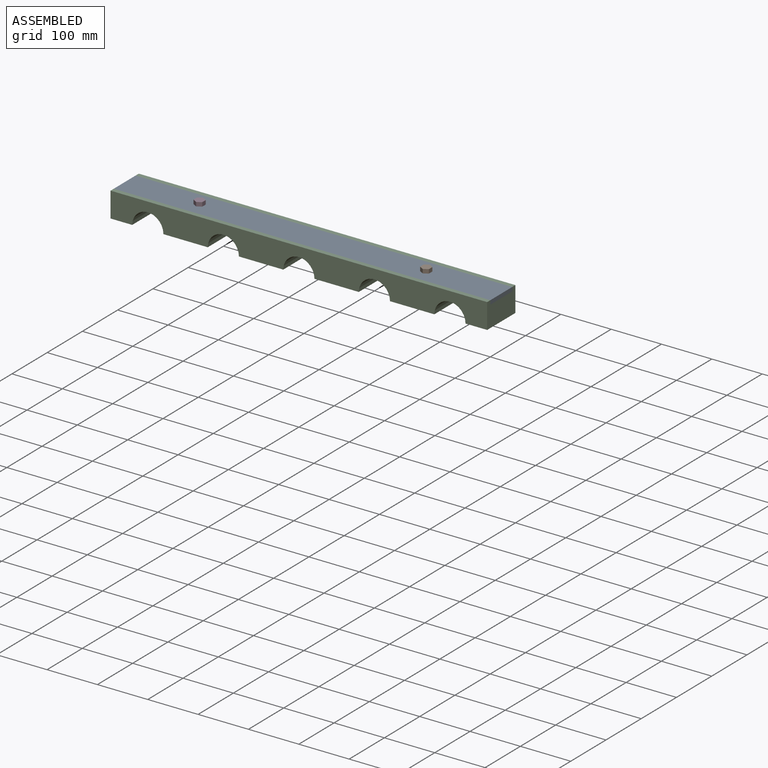
[diagram: assembled view]
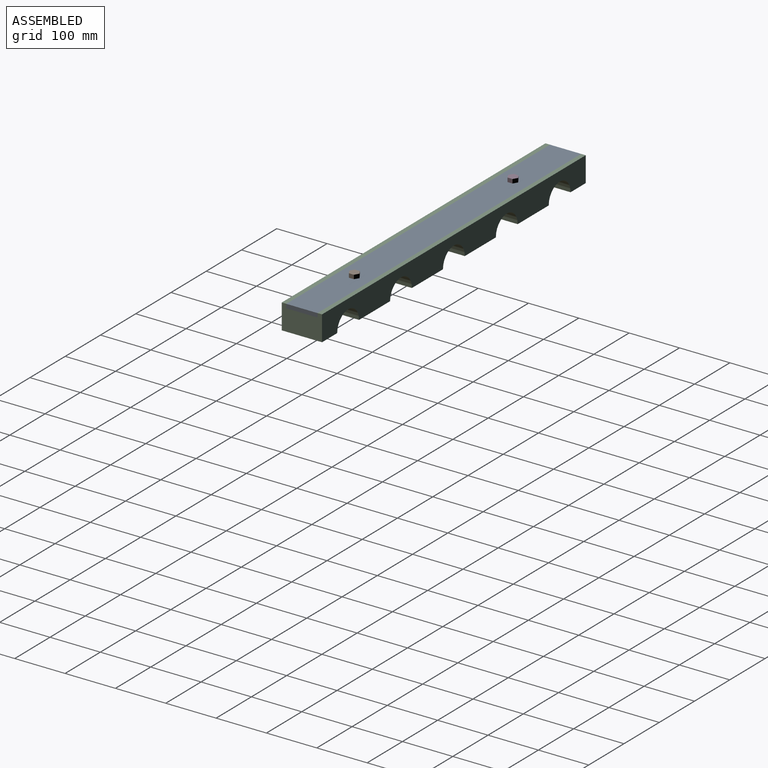
[diagram: assembled view, second angle]
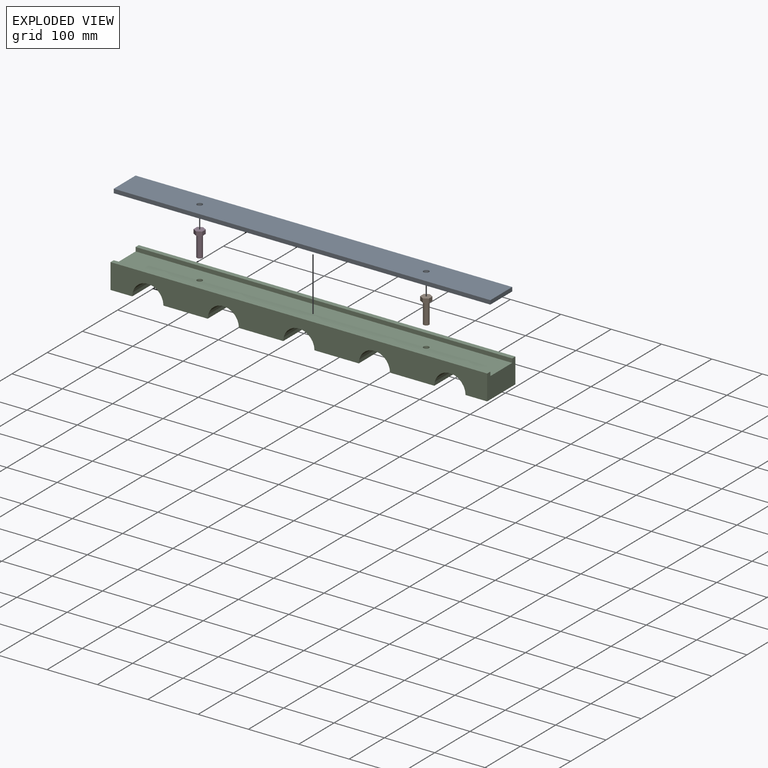
[diagram: exploded view]
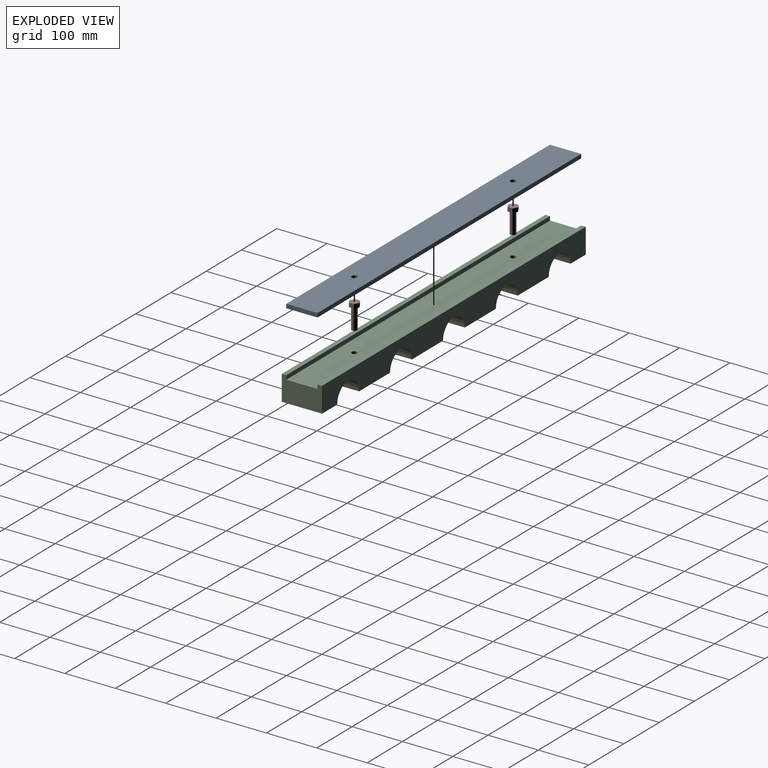
[diagram: exploded view, second angle]
ASSEMBLY  parts=4 mates=3
PART A: 8 faces, bbox 748x62x8 mm
  f0: plane 62x8mm, normal (-1,0,0), area 496mm2, adj f1,f5,f6,f7
  f1: plane 748x8mm, normal (0,-1,0), area 5984mm2, adj f0,f2,f6,f7
  f2: plane 62x8mm, normal (1,0,0), area 496mm2, adj f1,f5,f6,f7
  f3: cylinder r=5.5mm len=11mm, axis (0,0,1), area 276.5mm2, adj f6,f7
  f4: cylinder r=5.5mm len=11mm, axis (0,0,1), area 276.5mm2, adj f6,f7
  f5: plane 748x8mm, normal (0,1,0), area 5984mm2, adj f0,f2,f6,f7
  f6: plane 748x62mm, normal (0,0,-1), area 46185.9mm2, adj f0,f1,f2,f3,f4,f5
  f7: plane 748x62mm, normal (0,0,1), area 46185.9mm2, adj f0,f1,f2,f3,f4,f5
PART B: 10 faces, bbox 17.3x50x20 mm
  f0: plane 8.66x8mm, normal (-0.5,0,0.87), area 80mm2, adj f1,f5,f6,f7
  f1: plane 10x8mm, normal (-1,0,0), area 80mm2, adj f0,f2,f6,f7
  f2: plane 8.66x8mm, normal (-0.5,0,-0.87), area 80mm2, adj f1,f3,f6,f7
  f3: plane 8.66x8mm, normal (0.5,0,-0.87), area 80mm2, adj f2,f4,f6,f7
  f4: plane 10x8mm, normal (1,0,0), area 80mm2, adj f3,f5,f6,f7
  f5: plane 8.66x8mm, normal (0.5,0,0.87), area 80mm2, adj f0,f4,f6,f7
  f6: plane 20x17.32mm, normal (0,1,0), area 164.8mm2, adj f0,f1,f2,f3,f4,f5,f8
  f7: plane 20x17.32mm, normal (0,-1,0), area 259.8mm2, adj f0,f1,f2,f3,f4,f5
  f8: cylinder r=5.5mm len=42mm, axis (0,-1,0), area 1451.4mm2, adj f6,f9
  f9: plane 11x11mm, normal (0,1,0), area 95mm2, adj f8
PART C: 22 faces, bbox 748x80x50 mm
  f0: plane 748x62mm, normal (0,0,1), area 46185.9mm2, adj f1,f13,f16,f19,f20,f21
  f1: plane 80x50mm, normal (-1,0,0), area 3504mm2, adj f0,f2,f14,f15,f16,f17,f18,f19
  f2: plane 80x43mm, normal (0,0,-1), area 3440mm2, adj f1,f3,f14,f15
  f3: cylinder r=31mm len=80mm, axis (0,1,0), area 7791.1mm2, adj f2,f4,f14,f15
  f4: plane 88x80mm, normal (0,0,-1), area 6945mm2, adj f3,f5,f14,f15,f21
  f5: cylinder r=31mm len=80mm, axis (0,1,0), area 7791.1mm2, adj f4,f6,f14,f15
  f6: plane 88x80mm, normal (0,0,-1), area 7040mm2, adj f5,f7,f14,f15
  f7: cylinder r=31mm len=80mm, axis (0,1,0), area 7791.1mm2, adj f6,f8,f14,f15
  f8: plane 88x80mm, normal (0,0,-1), area 7040mm2, adj f7,f9,f14,f15
  f9: cylinder r=31mm len=80mm, axis (0,1,0), area 7791.1mm2, adj f8,f10,f14,f15
  f10: plane 88x80mm, normal (0,0,-1), area 6945mm2, adj f9,f11,f14,f15,f20
  f11: cylinder r=31mm len=80mm, axis (0,1,0), area 7791.1mm2, adj f10,f12,f14,f15
  f12: plane 80x43mm, normal (0,0,-1), area 3440mm2, adj f11,f13,f14,f15
  f13: plane 80x50mm, normal (1,0,0), area 3504mm2, adj f0,f12,f14,f15,f16,f17,f18,f19
  f14: plane 748x50mm, normal (0,-1,0), area 29852.3mm2, adj f1,f2,f3,f4,f5,f6,f7,f8
  f15: plane 748x50mm, normal (0,1,0), area 29852.3mm2, adj f1,f2,f3,f4,f5,f6,f7,f8
  f16: plane 748x8mm, normal (0,1,0), area 5984mm2, adj f0,f1,f13,f17
  f17: plane 748x9mm, normal (0,0,1), area 6732mm2, adj f1,f13,f14,f16
  f18: plane 748x9mm, normal (0,0,1), area 6732mm2, adj f1,f13,f15,f19
  f19: plane 748x8mm, normal (0,-1,0), area 5984mm2, adj f0,f1,f13,f18
  f20: cylinder r=5.5mm len=42mm, axis (0,0,1), area 1451.4mm2, adj f0,f10
  f21: cylinder r=5.5mm len=42mm, axis (0,0,1), area 1451.4mm2, adj f0,f4
PART D: same geometry as B
PLACE A rot(axis=(0.37,-0.93,-0.06),0deg) t=(309.47,-213.63,268.69)mm
PLACE B rot(axis=(-1,0,0),90deg) t=(502.56,-213.63,276.89)mm
PLACE C rot(axis=(0.37,-0.93,-0.06),0deg) t=(115.5,-173.63,162.36)mm
PLACE D rot(axis=(-1,0,0),90deg) t=(52.56,-213.63,276.8)mm
MATE fastened A.f4 <-> C.f20  axis (0,0,-1) through (502.56,-213.63,260.69)mm
MATE slider D.f8 <-> C.f21  axis (0,0,-1) through (52.56,-213.63,226.8)mm
MATE slider B.f8 <-> A.f4  axis (0,0,-1) through (502.56,-213.63,226.89)mm
